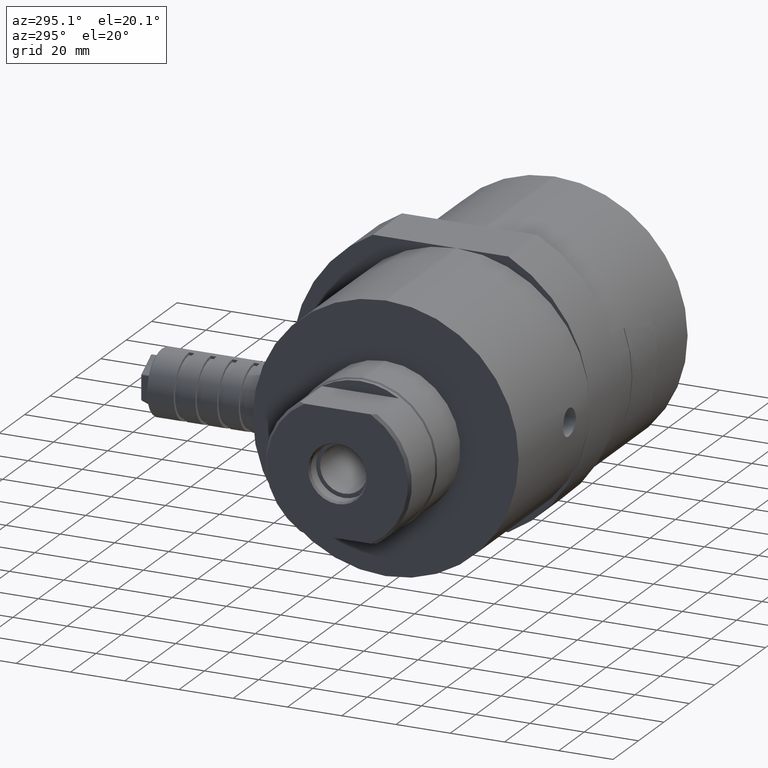
[diagram: clean part render]
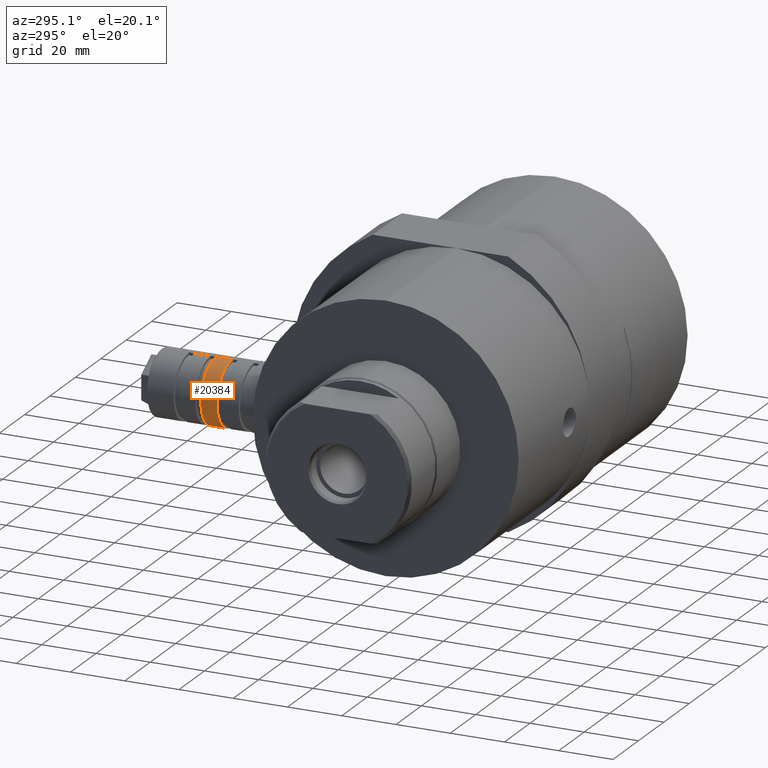
[diagram: same view with one face highlighted and labeled with its STEP entity id]
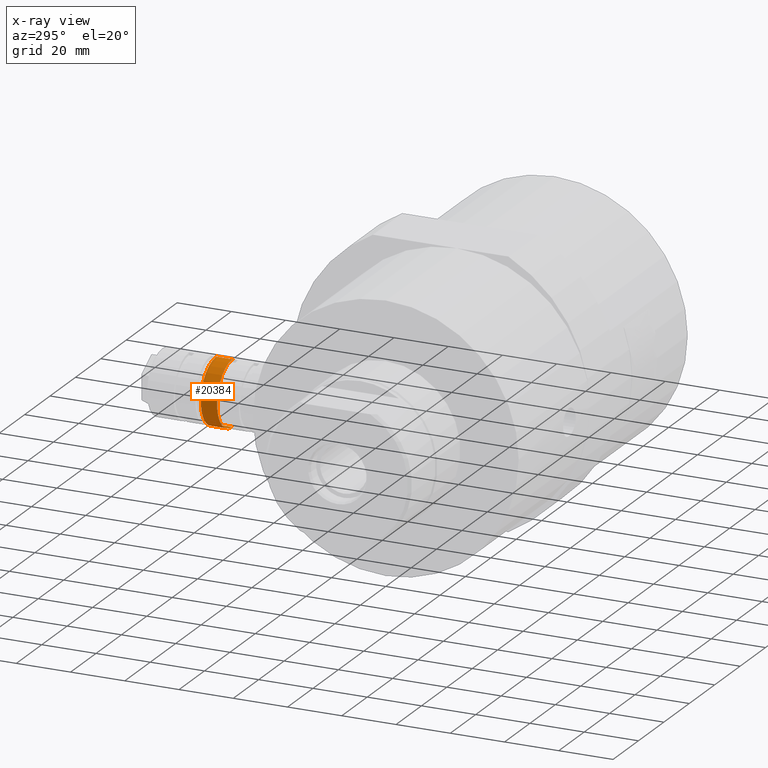
[diagram: x-ray of the same camera — body ghosted, the highlighted face saturated]
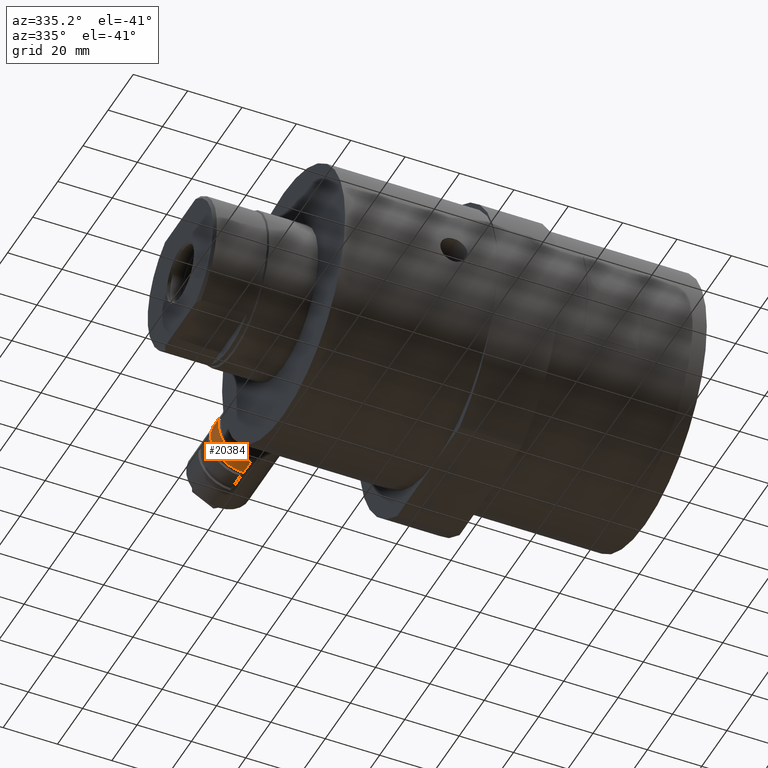
[diagram: same view with one face highlighted and labeled with its STEP entity id]
A machine part, auxiliary view. The second image highlights one B-rep face of the part: STEP entity #20384.
The next image is the same camera in x-ray: the body ghosted, the highlighted face saturated — about 0% of this face is hidden behind the body in this view.
A second angle (auxiliary view) of the same face is appended — the face is thin or edge-on in the first view.
In plain terms, the highlighted cylindrical surface (edge-blend (fillet) strip) has radius 12 mm, axis along (0, -1, 0).
Its self-contained STEP definition (entity closure, byte-faithful):
#98 = DIRECTION ( 'NONE',  ( 0.0000000000000000000, 0.0000000000000000000, -1.000000000000000000 ) ) ;
#107 = AXIS2_PLACEMENT_3D ( 'NONE', #21623, #933, #11478 ) ;
#668 = DIRECTION ( 'NONE',  ( 0.0000000000000000000, 0.0000000000000000000, 1.000000000000000000 ) ) ;
#933 = DIRECTION ( 'NONE',  ( 0.0000000000000000000, 1.000000000000000000, 0.0000000000000000000 ) ) ;
#2383 = CIRCLE ( 'NONE', #17823, 12.00000000000000000 ) ;
#3700 = ORIENTED_EDGE ( 'NONE', *, *, #19042, .F. ) ;
#4482 = VECTOR ( 'NONE', #18016, 1000.000000000000000 ) ;
#5188 = DIRECTION ( 'NONE',  ( 0.0000000000000000000, 1.000000000000000000, 0.0000000000000000000 ) ) ;
#5554 = CARTESIAN_POINT ( 'NONE',  ( 18.00000000000000000, 91.00000000000000000, 12.00000000000000000 ) ) ;
#5683 = VERTEX_POINT ( 'NONE', #19463 ) ;
#6455 = VERTEX_POINT ( 'NONE', #12365 ) ;
#6928 = EDGE_CURVE ( 'NONE', #12063, #8342, #19112, .T. ) ;
#7110 = CARTESIAN_POINT ( 'NONE',  ( 18.00000000000000000, 91.00000000000000000, -1.172835700086194200E-016 ) ) ;
#8342 = VERTEX_POINT ( 'NONE', #13301 ) ;
#8995 = CARTESIAN_POINT ( 'NONE',  ( 18.00000000000000000, 65.00000000000000000, -1.172835700086194200E-016 ) ) ;
#9925 = CARTESIAN_POINT ( 'NONE',  ( 18.00000000000000000, 71.00000000000000000, -12.00000000000000000 ) ) ;
#9996 = CYLINDRICAL_SURFACE ( 'NONE', #19000, 12.00000000000000000 ) ;
#10585 = DIRECTION ( 'NONE',  ( 0.0000000000000000000, -1.000000000000000000, 0.0000000000000000000 ) ) ;
#10811 = FACE_OUTER_BOUND ( 'NONE', #21539, .T. ) ;
#11478 = DIRECTION ( 'NONE',  ( 0.0000000000000000000, 0.0000000000000000000, -1.000000000000000000 ) ) ;
#12063 = VERTEX_POINT ( 'NONE', #9925 ) ;
#12365 = CARTESIAN_POINT ( 'NONE',  ( 18.00000000000000000, 65.00000000000000000, 12.00000000000000000 ) ) ;
#12669 = EDGE_CURVE ( 'NONE', #8342, #6455, #2383, .T. ) ;
#13053 = ORIENTED_EDGE ( 'NONE', *, *, #20047, .F. ) ;
#13301 = CARTESIAN_POINT ( 'NONE',  ( 18.00000000000000000, 65.00000000000000000, -12.00000000000000000 ) ) ;
#14246 = DIRECTION ( 'NONE',  ( 0.0000000000000000000, -1.000000000000000000, 0.0000000000000000000 ) ) ;
#14907 = VECTOR ( 'NONE', #10585, 1000.000000000000000 ) ;
#15732 = CIRCLE ( 'NONE', #107, 12.00000000000000000 ) ;
#16208 = ORIENTED_EDGE ( 'NONE', *, *, #6928, .T. ) ;
#17784 = CARTESIAN_POINT ( 'NONE',  ( 18.00000000000000000, 91.00000000000000000, -12.00000000000000000 ) ) ;
#17823 = AXIS2_PLACEMENT_3D ( 'NONE', #8995, #5188, #98 ) ;
#18016 = DIRECTION ( 'NONE',  ( 0.0000000000000000000, -1.000000000000000000, 0.0000000000000000000 ) ) ;
#19000 = AXIS2_PLACEMENT_3D ( 'NONE', #7110, #14246, #668 ) ;
#19042 = EDGE_CURVE ( 'NONE', #12063, #5683, #15732, .T. ) ;
#19112 = LINE ( 'NONE', #17784, #4482 ) ;
#19463 = CARTESIAN_POINT ( 'NONE',  ( 18.00000000000000000, 71.00000000000000000, 12.00000000000000000 ) ) ;
#20047 = EDGE_CURVE ( 'NONE', #5683, #6455, #20263, .T. ) ;
#20263 = LINE ( 'NONE', #5554, #14907 ) ;
#20384 = ADVANCED_FACE ( 'NONE', ( #10811 ), #9996, .T. ) ;
#20970 = ORIENTED_EDGE ( 'NONE', *, *, #12669, .T. ) ;
#21539 = EDGE_LOOP ( 'NONE', ( #3700, #16208, #20970, #13053 ) ) ;
#21623 = CARTESIAN_POINT ( 'NONE',  ( 18.00000000000000000, 71.00000000000000000, -1.172835700086194200E-016 ) ) ;